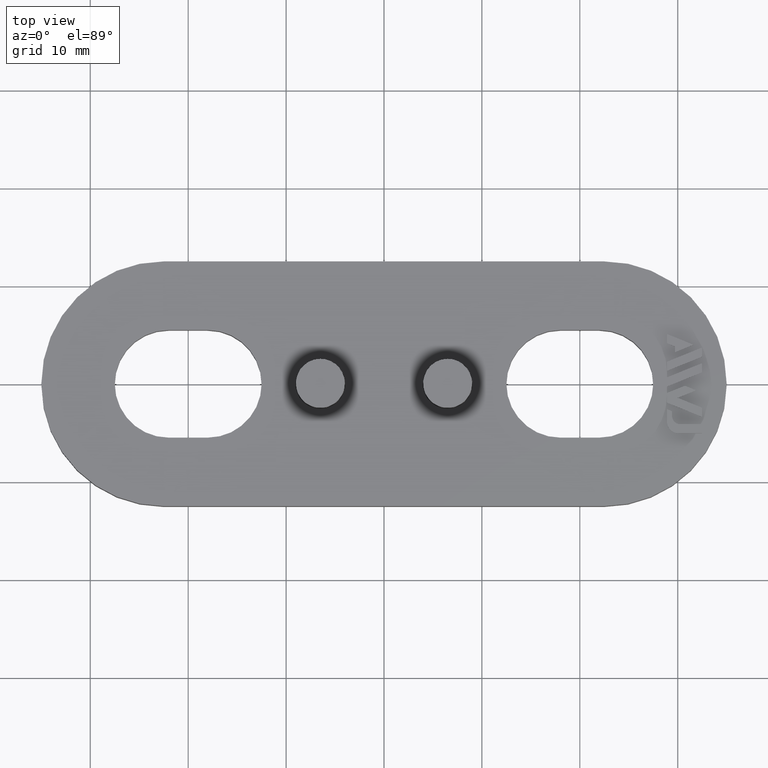
[diagram: clean part render]
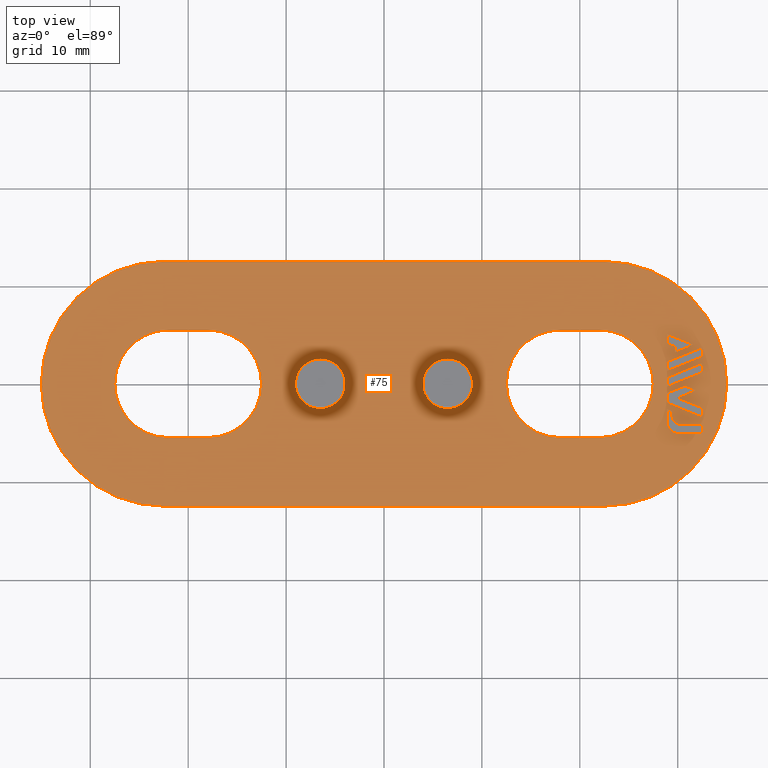
[diagram: same view with one face highlighted and labeled with its STEP entity id]
A machine part, top view. The second image highlights one B-rep face of the part: STEP entity #75.
In plain terms, the highlighted planar face has unit normal (0, -0, -1).
Its self-contained STEP definition (entity closure, byte-faithful):
#75 = ADVANCED_FACE( '', ( #292, #293, #294, #295, #296, #297, #298, #299, #300, #301 ), #302, .F. );
#292 = FACE_BOUND( '', #768, .T. );
#293 = FACE_BOUND( '', #769, .T. );
#294 = FACE_BOUND( '', #770, .T. );
#295 = FACE_OUTER_BOUND( '', #771, .T. );
#296 = FACE_BOUND( '', #772, .T. );
#297 = FACE_BOUND( '', #773, .T. );
#298 = FACE_BOUND( '', #774, .T. );
#299 = FACE_BOUND( '', #775, .T. );
#300 = FACE_BOUND( '', #776, .T. );
#301 = FACE_BOUND( '', #777, .T. );
#302 = PLANE( '', #778 );
#768 = EDGE_LOOP( '', ( #1244, #1245, #1246, #1247, #1248, #1249, #1250 ) );
#769 = EDGE_LOOP( '', ( #1251, #1252, #1253, #1254 ) );
#770 = EDGE_LOOP( '', ( #1255, #1256, #1257, #1258, #1259, #1260 ) );
#771 = EDGE_LOOP( '', ( #1261, #1262, #1263, #1264, #1265, #1266 ) );
#772 = EDGE_LOOP( '', ( #1267, #1268, #1269, #1270, #1271, #1272 ) );
#773 = EDGE_LOOP( '', ( #1273 ) );
#774 = EDGE_LOOP( '', ( #1274 ) );
#775 = EDGE_LOOP( '', ( #1275, #1276, #1277, #1278, #1279 ) );
#776 = EDGE_LOOP( '', ( #1280, #1281, #1282, #1283 ) );
#777 = EDGE_LOOP( '', ( #1284, #1285, #1286, #1287, #1288, #1289, #1290, #1291 ) );
#778 = AXIS2_PLACEMENT_3D( '', #1292, #1293, #1294 );
#1244 = ORIENTED_EDGE( '', *, *, #2960, .F. );
#1245 = ORIENTED_EDGE( '', *, *, #2961, .F. );
#1246 = ORIENTED_EDGE( '', *, *, #2962, .F. );
#1247 = ORIENTED_EDGE( '', *, *, #2963, .F. );
#1248 = ORIENTED_EDGE( '', *, *, #2964, .F. );
#1249 = ORIENTED_EDGE( '', *, *, #2965, .F. );
#1250 = ORIENTED_EDGE( '', *, *, #2966, .F. );
#1251 = ORIENTED_EDGE( '', *, *, #2967, .F. );
#1252 = ORIENTED_EDGE( '', *, *, #2968, .F. );
#1253 = ORIENTED_EDGE( '', *, *, #2969, .F. );
#1254 = ORIENTED_EDGE( '', *, *, #2970, .F. );
#1255 = ORIENTED_EDGE( '', *, *, #2971, .F. );
#1256 = ORIENTED_EDGE( '', *, *, #2972, .F. );
#1257 = ORIENTED_EDGE( '', *, *, #2973, .F. );
#1258 = ORIENTED_EDGE( '', *, *, #2974, .F. );
#1259 = ORIENTED_EDGE( '', *, *, #2975, .F. );
#1260 = ORIENTED_EDGE( '', *, *, #2976, .F. );
#1261 = ORIENTED_EDGE( '', *, *, #2977, .F. );
#1262 = ORIENTED_EDGE( '', *, *, #2978, .F. );
#1263 = ORIENTED_EDGE( '', *, *, #2979, .F. );
#1264 = ORIENTED_EDGE( '', *, *, #2980, .F. );
#1265 = ORIENTED_EDGE( '', *, *, #2981, .F. );
#1266 = ORIENTED_EDGE( '', *, *, #2982, .F. );
#1267 = ORIENTED_EDGE( '', *, *, #2983, .F. );
#1268 = ORIENTED_EDGE( '', *, *, #2984, .F. );
#1269 = ORIENTED_EDGE( '', *, *, #2985, .F. );
#1270 = ORIENTED_EDGE( '', *, *, #2986, .F. );
#1271 = ORIENTED_EDGE( '', *, *, #2987, .F. );
#1272 = ORIENTED_EDGE( '', *, *, #2988, .F. );
#1273 = ORIENTED_EDGE( '', *, *, #2989, .T. );
#1274 = ORIENTED_EDGE( '', *, *, #2990, .T. );
#1275 = ORIENTED_EDGE( '', *, *, #2991, .F. );
#1276 = ORIENTED_EDGE( '', *, *, #2992, .F. );
#1277 = ORIENTED_EDGE( '', *, *, #2993, .F. );
#1278 = ORIENTED_EDGE( '', *, *, #2994, .F. );
#1279 = ORIENTED_EDGE( '', *, *, #2995, .F. );
#1280 = ORIENTED_EDGE( '', *, *, #2996, .F. );
#1281 = ORIENTED_EDGE( '', *, *, #2997, .F. );
#1282 = ORIENTED_EDGE( '', *, *, #2998, .F. );
#1283 = ORIENTED_EDGE( '', *, *, #2999, .F. );
#1284 = ORIENTED_EDGE( '', *, *, #3000, .F. );
#1285 = ORIENTED_EDGE( '', *, *, #3001, .F. );
#1286 = ORIENTED_EDGE( '', *, *, #3002, .F. );
#1287 = ORIENTED_EDGE( '', *, *, #3003, .F. );
#1288 = ORIENTED_EDGE( '', *, *, #3004, .F. );
#1289 = ORIENTED_EDGE( '', *, *, #3005, .F. );
#1290 = ORIENTED_EDGE( '', *, *, #3006, .F. );
#1291 = ORIENTED_EDGE( '', *, *, #3007, .F. );
#1292 = CARTESIAN_POINT( '', ( 22.5000000000000, 0.000000000000000, 5.00000000000000 ) );
#1293 = DIRECTION( '', ( 0.000000000000000, -6.12303176911189E-017, -1.00000000000000 ) );
#1294 = DIRECTION( '', ( 0.000000000000000, -1.00000000000000, 6.12303176911189E-017 ) );
#2960 = EDGE_CURVE( '', #3494, #3495, #3496, .T. );
#2961 = EDGE_CURVE( '', #3497, #3494, #3498, .T. );
#2962 = EDGE_CURVE( '', #3499, #3497, #3500, .T. );
#2963 = EDGE_CURVE( '', #3501, #3499, #3502, .T. );
#2964 = EDGE_CURVE( '', #3503, #3501, #3504, .T. );
#2965 = EDGE_CURVE( '', #3505, #3503, #3506, .T. );
#2966 = EDGE_CURVE( '', #3495, #3505, #3507, .T. );
#2967 = EDGE_CURVE( '', #3508, #3509, #3510, .T. );
#2968 = EDGE_CURVE( '', #3511, #3508, #3512, .T. );
#2969 = EDGE_CURVE( '', #3513, #3511, #3514, .T. );
#2970 = EDGE_CURVE( '', #3509, #3513, #3515, .T. );
#2971 = EDGE_CURVE( '', #3516, #3517, #3518, .T. );
#2972 = EDGE_CURVE( '', #3519, #3516, #3520, .T. );
#2973 = EDGE_CURVE( '', #3521, #3519, #3522, .T. );
#2974 = EDGE_CURVE( '', #3523, #3521, #3524, .T. );
#2975 = EDGE_CURVE( '', #3525, #3523, #3526, .T. );
#2976 = EDGE_CURVE( '', #3517, #3525, #3527, .T. );
#2977 = EDGE_CURVE( '', #3528, #3529, #3530, .T. );
#2978 = EDGE_CURVE( '', #3531, #3528, #3532, .T. );
#2979 = EDGE_CURVE( '', #3533, #3531, #3534, .T. );
#2980 = EDGE_CURVE( '', #3535, #3533, #3536, .T. );
#2981 = EDGE_CURVE( '', #3537, #3535, #3538, .T. );
#2982 = EDGE_CURVE( '', #3529, #3537, #3539, .T. );
#2983 = EDGE_CURVE( '', #3540, #3541, #3542, .T. );
#2984 = EDGE_CURVE( '', #3543, #3540, #3544, .T. );
#2985 = EDGE_CURVE( '', #3545, #3543, #3546, .T. );
#2986 = EDGE_CURVE( '', #3547, #3545, #3548, .T. );
#2987 = EDGE_CURVE( '', #3549, #3547, #3550, .T. );
#2988 = EDGE_CURVE( '', #3541, #3549, #3551, .T. );
#2989 = EDGE_CURVE( '', #3552, #3552, #3553, .T. );
#2990 = EDGE_CURVE( '', #3554, #3554, #3555, .T. );
#2991 = EDGE_CURVE( '', #3556, #3557, #3558, .T. );
#2992 = EDGE_CURVE( '', #3559, #3556, #3560, .T. );
#2993 = EDGE_CURVE( '', #3561, #3559, #3562, .T. );
#2994 = EDGE_CURVE( '', #3563, #3561, #3564, .T. );
#2995 = EDGE_CURVE( '', #3557, #3563, #3565, .T. );
#2996 = EDGE_CURVE( '', #3566, #3567, #3568, .T. );
#2997 = EDGE_CURVE( '', #3569, #3566, #3570, .T. );
#2998 = EDGE_CURVE( '', #3571, #3569, #3572, .T. );
#2999 = EDGE_CURVE( '', #3567, #3571, #3573, .T. );
#3000 = EDGE_CURVE( '', #3574, #3575, #3576, .T. );
#3001 = EDGE_CURVE( '', #3577, #3574, #3578, .T. );
#3002 = EDGE_CURVE( '', #3579, #3577, #3580, .T. );
#3003 = EDGE_CURVE( '', #3581, #3579, #3582, .T. );
#3004 = EDGE_CURVE( '', #3583, #3581, #3584, .T. );
#3005 = EDGE_CURVE( '', #3585, #3583, #3586, .T. );
#3006 = EDGE_CURVE( '', #3587, #3585, #3588, .T. );
#3007 = EDGE_CURVE( '', #3575, #3587, #3589, .T. );
#3494 = VERTEX_POINT( '', #4388 );
#3495 = VERTEX_POINT( '', #4389 );
#3496 = LINE( '', #4390, #4391 );
#3497 = VERTEX_POINT( '', #4392 );
#3498 = LINE( '', #4393, #4394 );
#3499 = VERTEX_POINT( '', #4395 );
#3500 = LINE( '', #4396, #4397 );
#3501 = VERTEX_POINT( '', #4398 );
#3502 = LINE( '', #4399, #4400 );
#3503 = VERTEX_POINT( '', #4401 );
#3504 = LINE( '', #4402, #4403 );
#3505 = VERTEX_POINT( '', #4404 );
#3506 = LINE( '', #4405, #4406 );
#3507 = LINE( '', #4407, #4408 );
#3508 = VERTEX_POINT( '', #4409 );
#3509 = VERTEX_POINT( '', #4410 );
#3510 = LINE( '', #4411, #4412 );
#3511 = VERTEX_POINT( '', #4413 );
#3512 = LINE( '', #4414, #4415 );
#3513 = VERTEX_POINT( '', #4416 );
#3514 = LINE( '', #4417, #4418 );
#3515 = LINE( '', #4419, #4420 );
#3516 = VERTEX_POINT( '', #4421 );
#3517 = VERTEX_POINT( '', #4422 );
#3518 = CIRCLE( '', #4423, 5.50000000000000 );
#3519 = VERTEX_POINT( '', #4424 );
#3520 = CIRCLE( '', #4425, 5.50000000000000 );
#3521 = VERTEX_POINT( '', #4426 );
#3522 = LINE( '', #4427, #4428 );
#3523 = VERTEX_POINT( '', #4429 );
#3524 = CIRCLE( '', #4430, 5.50000000000000 );
#3525 = VERTEX_POINT( '', #4431 );
#3526 = CIRCLE( '', #4432, 5.50000000000000 );
#3527 = LINE( '', #4433, #4434 );
#3528 = VERTEX_POINT( '', #4435 );
#3529 = VERTEX_POINT( '', #4436 );
#3530 = CIRCLE( '', #4437, 12.5000000000000 );
#3531 = VERTEX_POINT( '', #4438 );
#3532 = CIRCLE( '', #4439, 12.5000000000000 );
#3533 = VERTEX_POINT( '', #4440 );
#3534 = LINE( '', #4441, #4442 );
#3535 = VERTEX_POINT( '', #4443 );
#3536 = CIRCLE( '', #4444, 12.5000000000000 );
#3537 = VERTEX_POINT( '', #4445 );
#3538 = CIRCLE( '', #4446, 12.5000000000000 );
#3539 = LINE( '', #4447, #4448 );
#3540 = VERTEX_POINT( '', #4449 );
#3541 = VERTEX_POINT( '', #4450 );
#3542 = CIRCLE( '', #4451, 5.50000000000000 );
#3543 = VERTEX_POINT( '', #4452 );
#3544 = CIRCLE( '', #4453, 5.50000000000000 );
#3545 = VERTEX_POINT( '', #4454 );
#3546 = LINE( '', #4455, #4456 );
#3547 = VERTEX_POINT( '', #4457 );
#3548 = CIRCLE( '', #4458, 5.50000000000000 );
#3549 = VERTEX_POINT( '', #4459 );
#3550 = CIRCLE( '', #4460, 5.50000000000000 );
#3551 = LINE( '', #4461, #4462 );
#3552 = VERTEX_POINT( '', #4463 );
#3553 = CIRCLE( '', #4464, 2.54363766232054 );
#3554 = VERTEX_POINT( '', #4465 );
#3555 = CIRCLE( '', #4466, 2.54363766232055 );
#3556 = VERTEX_POINT( '', #4467 );
#3557 = VERTEX_POINT( '', #4468 );
#3558 = LINE( '', #4469, #4470 );
#3559 = VERTEX_POINT( '', #4471 );
#3560 = LINE( '', #4472, #4473 );
#3561 = VERTEX_POINT( '', #4474 );
#3562 = LINE( '', #4475, #4476 );
#3563 = VERTEX_POINT( '', #4477 );
#3564 = LINE( '', #4478, #4479 );
#3565 = LINE( '', #4480, #4481 );
#3566 = VERTEX_POINT( '', #4482 );
#3567 = VERTEX_POINT( '', #4483 );
#3568 = LINE( '', #4484, #4485 );
#3569 = VERTEX_POINT( '', #4486 );
#3570 = LINE( '', #4487, #4488 );
#3571 = VERTEX_POINT( '', #4489 );
#3572 = LINE( '', #4490, #4491 );
#3573 = LINE( '', #4492, #4493 );
#3574 = VERTEX_POINT( '', #4494 );
#3575 = VERTEX_POINT( '', #4495 );
#3576 = CIRCLE( '', #4496, 1.20000000000000 );
#3577 = VERTEX_POINT( '', #4497 );
#3578 = LINE( '', #4498, #4499 );
#3579 = VERTEX_POINT( '', #4500 );
#3580 = LINE( '', #4501, #4502 );
#3581 = VERTEX_POINT( '', #4503 );
#3582 = LINE( '', #4504, #4505 );
#3583 = VERTEX_POINT( '', #4506 );
#3584 = CIRCLE( '', #4507, 0.800000000000002 );
#3585 = VERTEX_POINT( '', #4508 );
#3586 = LINE( '', #4509, #4510 );
#3587 = VERTEX_POINT( '', #4511 );
#3588 = LINE( '', #4512, #4513 );
#3589 = LINE( '', #4514, #4515 );
#4388 = CARTESIAN_POINT( '', ( 28.9000000000001, -1.94153815900077, 4.99999999999998 ) );
#4389 = CARTESIAN_POINT( '', ( 32.4973661704648, -3.39489558569050, 4.99999999999998 ) );
#4390 = CARTESIAN_POINT( '', ( 28.9000000000001, -1.94153815900077, 4.99999999999998 ) );
#4391 = VECTOR( '', #5736, 1000.00000000000 );
#4392 = CARTESIAN_POINT( '', ( 28.9000000000001, -0.958868987414733, 4.99999999999998 ) );
#4393 = CARTESIAN_POINT( '', ( 28.9000000000001, -0.958868987414731, 4.99999999999998 ) );
#4394 = VECTOR( '', #5737, 1000.00000000000 );
#4395 = CARTESIAN_POINT( '', ( 30.7327570440906, -0.218257757464957, 4.99999999999998 ) );
#4396 = CARTESIAN_POINT( '', ( 30.7327570440906, -0.218257757464957, 4.99999999999998 ) );
#4397 = VECTOR( '', #5738, 1000.00000000000 );
#4398 = CARTESIAN_POINT( '', ( 31.8833737475896, -0.683055647481154, 4.99999999999998 ) );
#4399 = CARTESIAN_POINT( '', ( 31.8833737475896, -0.683055647481156, 4.99999999999998 ) );
#4400 = VECTOR( '', #5739, 1000.00000000000 );
#4401 = CARTESIAN_POINT( '', ( 29.9849571645034, -1.45010139340521, 4.99999999999998 ) );
#4402 = CARTESIAN_POINT( '', ( 29.9849571645034, -1.45010139340521, 4.99999999999998 ) );
#4403 = VECTOR( '', #5740, 1000.00000000000 );
#4404 = CARTESIAN_POINT( '', ( 32.4973661704648, -2.46529980565811, 4.99999999999998 ) );
#4405 = CARTESIAN_POINT( '', ( 32.4973661704648, -2.46529980565810, 4.99999999999998 ) );
#4406 = VECTOR( '', #5741, 1000.00000000000 );
#4407 = CARTESIAN_POINT( '', ( 32.4973661704648, -3.39489558569050, 4.99999999999998 ) );
#4408 = VECTOR( '', #5742, 1000.00000000000 );
#4409 = CARTESIAN_POINT( '', ( 28.9000000000001, 1.30847678860041, 4.99999999999998 ) );
#4410 = CARTESIAN_POINT( '', ( 32.4973661704648, 2.76206261720170, 4.99999999999998 ) );
#4411 = CARTESIAN_POINT( '', ( 28.9000000000001, 1.30847678860041, 4.99999999999998 ) );
#4412 = VECTOR( '', #5743, 1000.00000000000 );
#4413 = CARTESIAN_POINT( '', ( 28.9000000000001, 2.23799443113675, 4.99999999999998 ) );
#4414 = CARTESIAN_POINT( '', ( 28.9000000000001, 2.23799443113675, 4.99999999999998 ) );
#4415 = VECTOR( '', #5744, 1000.00000000000 );
#4416 = CARTESIAN_POINT( '', ( 32.4973661704648, 3.69137590013296, 4.99999999999998 ) );
#4417 = CARTESIAN_POINT( '', ( 32.4973661704648, 3.69137590013296, 4.99999999999998 ) );
#4418 = VECTOR( '', #5745, 1000.00000000000 );
#4419 = CARTESIAN_POINT( '', ( 32.4973661704648, 2.76206261720170, 4.99999999999998 ) );
#4420 = VECTOR( '', #5746, 1000.00000000000 );
#4421 = CARTESIAN_POINT( '', ( -12.5000000000000, 0.000000000000000, 5.00000199988362 ) );
#4422 = CARTESIAN_POINT( '', ( -18.0000000000000, 5.50000000000000, 5.00000199988362 ) );
#4423 = AXIS2_PLACEMENT_3D( '', #5747, #5748, #5749 );
#4424 = CARTESIAN_POINT( '', ( -18.0000000000000, -5.49999999999999, 5.00000199988362 ) );
#4425 = AXIS2_PLACEMENT_3D( '', #5750, #5751, #5752 );
#4426 = CARTESIAN_POINT( '', ( -22.0000000000000, -5.50000000000000, 5.00000199988362 ) );
#4427 = CARTESIAN_POINT( '', ( -22.0000000000000, -5.49999999999999, 5.00000199988362 ) );
#4428 = VECTOR( '', #5753, 1000.00000000000 );
#4429 = CARTESIAN_POINT( '', ( -27.5000000000000, 5.20417042793042E-015, 5.00000199988362 ) );
#4430 = AXIS2_PLACEMENT_3D( '', #5754, #5755, #5756 );
#4431 = CARTESIAN_POINT( '', ( -22.0000000000000, 5.50000000000000, 5.00000199988362 ) );
#4432 = AXIS2_PLACEMENT_3D( '', #5757, #5758, #5759 );
#4433 = CARTESIAN_POINT( '', ( -18.0000000000000, 5.50000000000000, 5.00000199988362 ) );
#4434 = VECTOR( '', #5760, 1000.00000000000 );
#4435 = CARTESIAN_POINT( '', ( 35.0000000000000, 0.000000000000000, 5.00000000000000 ) );
#4436 = CARTESIAN_POINT( '', ( 22.5000000000000, -12.5000000000000, 5.00000000000000 ) );
#4437 = AXIS2_PLACEMENT_3D( '', #5761, #5762, #5763 );
#4438 = CARTESIAN_POINT( '', ( 22.5000000000000, 12.5000000000000, 5.00000000000000 ) );
#4439 = AXIS2_PLACEMENT_3D( '', #5764, #5765, #5766 );
#4440 = CARTESIAN_POINT( '', ( -22.5000000000000, 12.5000000000000, 5.00000000000000 ) );
#4441 = CARTESIAN_POINT( '', ( -22.5000000000000, 12.5000000000000, 5.00000000000000 ) );
#4442 = VECTOR( '', #5767, 1000.00000000000 );
#4443 = CARTESIAN_POINT( '', ( -35.0000000000000, -1.73472347597681E-015, 5.00000000000000 ) );
#4444 = AXIS2_PLACEMENT_3D( '', #5768, #5769, #5770 );
#4445 = CARTESIAN_POINT( '', ( -22.5000000000000, -12.5000000000000, 5.00000000000000 ) );
#4446 = AXIS2_PLACEMENT_3D( '', #5771, #5772, #5773 );
#4447 = CARTESIAN_POINT( '', ( 22.5000000000000, -12.5000000000000, 5.00000000000000 ) );
#4448 = VECTOR( '', #5774, 1000.00000000000 );
#4449 = CARTESIAN_POINT( '', ( 27.5000000000000, 3.46944695195361E-015, 5.00000499988362 ) );
#4450 = CARTESIAN_POINT( '', ( 22.0000000000000, 5.50000000000000, 5.00000499988362 ) );
#4451 = AXIS2_PLACEMENT_3D( '', #5775, #5776, #5777 );
#4452 = CARTESIAN_POINT( '', ( 22.0000000000000, -5.49999999999999, 5.00000499988362 ) );
#4453 = AXIS2_PLACEMENT_3D( '', #5778, #5779, #5780 );
#4454 = CARTESIAN_POINT( '', ( 18.0000000000000, -5.49999999999999, 5.00000499988362 ) );
#4455 = CARTESIAN_POINT( '', ( 18.0000000000000, -5.49999999999999, 5.00000499988362 ) );
#4456 = VECTOR( '', #5781, 1000.00000000000 );
#4457 = CARTESIAN_POINT( '', ( 12.5000000000000, 1.04083408558608E-014, 5.00000499988362 ) );
#4458 = AXIS2_PLACEMENT_3D( '', #5782, #5783, #5784 );
#4459 = CARTESIAN_POINT( '', ( 18.0000000000000, 5.50000000000000, 5.00000499988362 ) );
#4460 = AXIS2_PLACEMENT_3D( '', #5785, #5786, #5787 );
#4461 = CARTESIAN_POINT( '', ( 22.0000000000000, 5.50000000000000, 5.00000499988362 ) );
#4462 = VECTOR( '', #5788, 1000.00000000000 );
#4463 = CARTESIAN_POINT( '', ( -6.50000000000000, 2.54380278691939, 5.00000000000000 ) );
#4464 = AXIS2_PLACEMENT_3D( '', #5789, #5790, #5791 );
#4465 = CARTESIAN_POINT( '', ( 6.50000000000000, 2.54347253772170, 5.00000000000000 ) );
#4466 = AXIS2_PLACEMENT_3D( '', #5792, #5793, #5794 );
#4467 = CARTESIAN_POINT( '', ( 28.9000000000001, 4.13597825270632, 4.99999999999998 ) );
#4468 = CARTESIAN_POINT( '', ( 29.7308540273209, 3.80004712542060, 4.99999999999998 ) );
#4469 = CARTESIAN_POINT( '', ( 28.9000000000001, 4.13597825270632, 4.99999999999998 ) );
#4470 = VECTOR( '', #5795, 1000.00000000000 );
#4471 = CARTESIAN_POINT( '', ( 28.9000000000001, 5.06529153563759, 4.99999999999998 ) );
#4472 = CARTESIAN_POINT( '', ( 28.9000000000001, 5.06529153563759, 4.99999999999998 ) );
#4473 = VECTOR( '', #5796, 1000.00000000000 );
#4474 = CARTESIAN_POINT( '', ( 31.5972101947166, 3.97568819540706, 4.99999999999998 ) );
#4475 = CARTESIAN_POINT( '', ( 31.5972101947166, 3.97568819540706, 4.99999999999998 ) );
#4476 = VECTOR( '', #5797, 1000.00000000000 );
#4477 = CARTESIAN_POINT( '', ( 29.7308540273209, 3.22197991900254, 4.99999999999998 ) );
#4478 = CARTESIAN_POINT( '', ( 29.7308540273209, 3.22197991900254, 4.99999999999998 ) );
#4479 = VECTOR( '', #5798, 1000.00000000000 );
#4480 = CARTESIAN_POINT( '', ( 29.7308540273209, 3.80004712542060, 4.99999999999998 ) );
#4481 = VECTOR( '', #5799, 1000.00000000000 );
#4482 = CARTESIAN_POINT( '', ( 28.9000000000001, -0.289999999999976, 4.99999999999998 ) );
#4483 = CARTESIAN_POINT( '', ( 32.4973661704648, 1.16358582860131, 4.99999999999998 ) );
#4484 = CARTESIAN_POINT( '', ( 28.9000000000001, -0.289999999999976, 4.99999999999998 ) );
#4485 = VECTOR( '', #5800, 1000.00000000000 );
#4486 = CARTESIAN_POINT( '', ( 28.9000000000001, 0.639583758879181, 4.99999999999998 ) );
#4487 = CARTESIAN_POINT( '', ( 28.9000000000001, 0.639583758879181, 4.99999999999998 ) );
#4488 = VECTOR( '', #5801, 1000.00000000000 );
#4489 = CARTESIAN_POINT( '', ( 32.4973661704648, 2.09316958748047, 4.99999999999998 ) );
#4490 = CARTESIAN_POINT( '', ( 32.4973661704648, 2.09316958748047, 4.99999999999998 ) );
#4491 = VECTOR( '', #5802, 1000.00000000000 );
#4492 = CARTESIAN_POINT( '', ( 32.4973661704648, 1.16358582860131, 4.99999999999998 ) );
#4493 = VECTOR( '', #5803, 1000.00000000000 );
#4494 = CARTESIAN_POINT( '', ( 28.9000000000001, -3.87288028181882, 4.99999999999998 ) );
#4495 = CARTESIAN_POINT( '', ( 30.1000000000001, -5.07288028181882, 4.99999999999998 ) );
#4496 = AXIS2_PLACEMENT_3D( '', #5804, #5805, #5806 );
#4497 = CARTESIAN_POINT( '', ( 28.9000000000001, -2.61040714641552, 4.99999999999998 ) );
#4498 = CARTESIAN_POINT( '', ( 28.9000000000001, -2.61040714641552, 4.99999999999998 ) );
#4499 = VECTOR( '', #5807, 1000.00000000000 );
#4500 = CARTESIAN_POINT( '', ( 29.4231249674404, -2.82176335265059, 4.99999999999998 ) );
#4501 = CARTESIAN_POINT( '', ( 29.4231249674404, -2.82176335265059, 4.99999999999998 ) );
#4502 = VECTOR( '', #5808, 1000.00000000000 );
#4503 = CARTESIAN_POINT( '', ( 29.4231249674404, -3.33274195062395, 4.99999999999998 ) );
#4504 = CARTESIAN_POINT( '', ( 29.4231249674404, -3.33274195062395, 4.99999999999998 ) );
#4505 = VECTOR( '', #5809, 1000.00000000000 );
#4506 = CARTESIAN_POINT( '', ( 30.2231249674404, -4.13274195062395, 4.99999999999998 ) );
#4507 = AXIS2_PLACEMENT_3D( '', #5810, #5811, #5812 );
#4508 = CARTESIAN_POINT( '', ( 32.4973661704648, -4.13274195062395, 5.00000000000000 ) );
#4509 = CARTESIAN_POINT( '', ( 32.4973661704648, -4.13274195062395, 4.99999999999998 ) );
#4510 = VECTOR( '', #5813, 1000.00000000000 );
#4511 = CARTESIAN_POINT( '', ( 32.4973661704648, -5.07288028181882, 4.99999999999998 ) );
#4512 = CARTESIAN_POINT( '', ( 32.4973661704648, -5.07288028181882, 5.00000000000000 ) );
#4513 = VECTOR( '', #5814, 1000.00000000000 );
#4514 = CARTESIAN_POINT( '', ( 30.1000000000001, -5.07288028181882, 4.99999999999998 ) );
#4515 = VECTOR( '', #5815, 1000.00000000000 );
#5736 = DIRECTION( '', ( 0.927190376050329, -0.374590451773198, 2.39125360955527E-016 ) );
#5737 = DIRECTION( '', ( 6.12303176911188E-017, -1.00000000000000, 1.83690953073356E-016 ) );
#5738 = DIRECTION( '', ( -0.927161130553612, -0.374662832411421, -1.01488938957147E-016 ) );
#5739 = DIRECTION( '', ( -0.927206645422846, 0.374550179126525, -2.39120951771220E-016 ) );
#5740 = DIRECTION( '', ( 0.927177805503196, 0.374621565025663, 1.01499582439949E-016 ) );
#5741 = DIRECTION( '', ( -0.927168564368796, 0.374644435760503, -2.39131270717037E-016 ) );
#5742 = DIRECTION( '', ( -6.12303176911189E-017, 1.00000000000000, -1.83690953073356E-016 ) );
#5743 = DIRECTION( '', ( 0.927169929060563, 0.374641058409020, 1.01494554850527E-016 ) );
#5744 = DIRECTION( '', ( 6.12303176911188E-017, -1.00000000000000, 1.83690953073356E-016 ) );
#5745 = DIRECTION( '', ( -0.927188223823226, -0.374595778945159, -1.01506232860788E-016 ) );
#5746 = DIRECTION( '', ( -6.12303176911189E-017, 1.00000000000000, -1.83690953073356E-016 ) );
#5747 = CARTESIAN_POINT( '', ( -18.0000000000000, 0.000000000000000, 5.00000199988362 ) );
#5748 = DIRECTION( '', ( 0.000000000000000, 6.12303176911189E-017, 1.00000000000000 ) );
#5749 = DIRECTION( '', ( 1.15648231731787E-016, -1.00000000000000, 6.12303176911189E-017 ) );
#5750 = CARTESIAN_POINT( '', ( -18.0000000000000, 3.46944695195361E-015, 5.00000199988362 ) );
#5751 = DIRECTION( '', ( 0.000000000000000, 6.12303176911189E-017, 1.00000000000000 ) );
#5752 = DIRECTION( '', ( 1.15648231731787E-016, -1.00000000000000, 6.12303176911189E-017 ) );
#5753 = DIRECTION( '', ( 1.00000000000000, 1.15648231731787E-016, -7.08117796935346E-033 ) );
#5754 = CARTESIAN_POINT( '', ( -22.0000000000000, 3.46944695195361E-015, 5.00000199988362 ) );
#5755 = DIRECTION( '', ( 0.000000000000000, 6.12303176911189E-017, 1.00000000000000 ) );
#5756 = DIRECTION( '', ( 1.15648231731787E-016, -1.00000000000000, 6.12303176911189E-017 ) );
#5757 = CARTESIAN_POINT( '', ( -22.0000000000000, 0.000000000000000, 5.00000199988362 ) );
#5758 = DIRECTION( '', ( 0.000000000000000, 6.12303176911189E-017, 1.00000000000000 ) );
#5759 = DIRECTION( '', ( 1.15648231731787E-016, -1.00000000000000, 6.12303176911189E-017 ) );
#5760 = DIRECTION( '', ( -1.00000000000000, -1.15648231731787E-016, 7.08117796935346E-033 ) );
#5761 = CARTESIAN_POINT( '', ( 22.5000000000000, 0.000000000000000, 5.00000000000000 ) );
#5762 = DIRECTION( '', ( 0.000000000000000, -6.12303176911189E-017, -1.00000000000000 ) );
#5763 = DIRECTION( '', ( 0.000000000000000, 1.00000000000000, -6.12303176911189E-017 ) );
#5764 = CARTESIAN_POINT( '', ( 22.5000000000000, 0.000000000000000, 5.00000000000000 ) );
#5765 = DIRECTION( '', ( 0.000000000000000, -6.12303176911189E-017, -1.00000000000000 ) );
#5766 = DIRECTION( '', ( 0.000000000000000, 1.00000000000000, -6.12303176911189E-017 ) );
#5767 = DIRECTION( '', ( 1.00000000000000, 0.000000000000000, 0.000000000000000 ) );
#5768 = CARTESIAN_POINT( '', ( -22.5000000000000, 0.000000000000000, 5.00000000000000 ) );
#5769 = DIRECTION( '', ( 0.000000000000000, -6.12303176911189E-017, -1.00000000000000 ) );
#5770 = DIRECTION( '', ( 0.000000000000000, 1.00000000000000, -6.12303176911189E-017 ) );
#5771 = CARTESIAN_POINT( '', ( -22.5000000000000, 0.000000000000000, 5.00000000000000 ) );
#5772 = DIRECTION( '', ( 0.000000000000000, -6.12303176911189E-017, -1.00000000000000 ) );
#5773 = DIRECTION( '', ( 0.000000000000000, 1.00000000000000, -6.12303176911189E-017 ) );
#5774 = DIRECTION( '', ( -1.00000000000000, 0.000000000000000, 0.000000000000000 ) );
#5775 = CARTESIAN_POINT( '', ( 22.0000000000000, 1.73472347597681E-015, 5.00000499988362 ) );
#5776 = DIRECTION( '', ( 0.000000000000000, 6.12303176911189E-017, 1.00000000000000 ) );
#5777 = DIRECTION( '', ( 5.78241158658935E-017, -1.00000000000000, 6.12303176911189E-017 ) );
#5778 = CARTESIAN_POINT( '', ( 22.0000000000000, 3.46944695195361E-015, 5.00000499988362 ) );
#5779 = DIRECTION( '', ( 7.23811190250423E-049, 6.12303176911189E-017, 1.00000000000000 ) );
#5780 = DIRECTION( '', ( 5.78241158658936E-017, -1.00000000000000, 6.12303176911189E-017 ) );
#5781 = DIRECTION( '', ( 1.00000000000000, 5.78241158658936E-017, -3.54058898467673E-033 ) );
#5782 = CARTESIAN_POINT( '', ( 18.0000000000000, 3.46944695195361E-015, 5.00000499988362 ) );
#5783 = DIRECTION( '', ( 0.000000000000000, 6.12303176911189E-017, 1.00000000000000 ) );
#5784 = DIRECTION( '', ( 5.78241158658935E-017, -1.00000000000000, 6.12303176911189E-017 ) );
#5785 = CARTESIAN_POINT( '', ( 18.0000000000000, 1.73472347597681E-015, 5.00000499988362 ) );
#5786 = DIRECTION( '', ( 0.000000000000000, 6.12303176911189E-017, 1.00000000000000 ) );
#5787 = DIRECTION( '', ( 5.78241158658935E-017, -1.00000000000000, 6.12303176911189E-017 ) );
#5788 = DIRECTION( '', ( -1.00000000000000, -5.78241158658936E-017, 3.54058898467673E-033 ) );
#5789 = CARTESIAN_POINT( '', ( -6.50000000000000, 0.000165124598850222, 5.00000000000000 ) );
#5790 = DIRECTION( '', ( 0.000000000000000, -6.12303176911189E-017, -1.00000000000000 ) );
#5791 = DIRECTION( '', ( 0.000000000000000, 1.00000000000000, -6.12303176911189E-017 ) );
#5792 = CARTESIAN_POINT( '', ( 6.50000000000000, -0.000165124598848487, 5.00000000000000 ) );
#5793 = DIRECTION( '', ( 0.000000000000000, -6.12303176911189E-017, -1.00000000000000 ) );
#5794 = DIRECTION( '', ( 0.000000000000000, 1.00000000000000, -6.12303176911189E-017 ) );
#5795 = DIRECTION( '', ( 0.927089140205383, -0.374840934415179, 2.39152776241917E-016 ) );
#5796 = DIRECTION( '', ( 1.16741468922377E-016, -1.00000000000000, 1.83690953073356E-016 ) );
#5797 = DIRECTION( '', ( -0.927200607094025, 0.374565126786346, -2.39122588334723E-016 ) );
#5798 = DIRECTION( '', ( 0.927243990558706, 0.374457717202846, 1.01541837398607E-016 ) );
#5799 = DIRECTION( '', ( 6.12303176911189E-017, -1.00000000000000, 1.83690953073356E-016 ) );
#5800 = DIRECTION( '', ( 0.927169929060563, 0.374641058409019, 1.01494554850527E-016 ) );
#5801 = DIRECTION( '', ( -1.60814287233912E-016, -1.00000000000000, 1.83690953073356E-016 ) );
#5802 = DIRECTION( '', ( -0.927169929060563, -0.374641058409020, -1.01494554850527E-016 ) );
#5803 = DIRECTION( '', ( 1.60814287233912E-016, 1.00000000000000, -1.83690953073356E-016 ) );
#5804 = CARTESIAN_POINT( '', ( 30.1000000000001, -3.87288028181882, 4.99999999999998 ) );
#5805 = DIRECTION( '', ( 1.42547451204917E-048, 6.12303176911188E-017, 1.00000000000000 ) );
#5806 = DIRECTION( '', ( -1.00000000000000, -6.12303176911189E-017, 3.74915180455534E-033 ) );
#5807 = DIRECTION( '', ( 6.12303176911188E-017, -1.00000000000000, 1.83690953073356E-016 ) );
#5808 = DIRECTION( '', ( -0.927183854566787, 0.374606593415912, -2.39127128091734E-016 ) );
#5809 = DIRECTION( '', ( -6.12303176911189E-017, 1.00000000000000, -1.83690953073357E-016 ) );
#5810 = CARTESIAN_POINT( '', ( 30.2231249674404, -3.33274195062395, 4.99999999999998 ) );
#5811 = DIRECTION( '', ( 5.34552942018436E-049, -6.12303176911189E-017, -1.00000000000000 ) );
#5812 = DIRECTION( '', ( 6.12303176911189E-017, -1.00000000000000, 6.12303176911189E-017 ) );
#5813 = DIRECTION( '', ( -1.00000000000000, -5.14996031930577E-019, -1.83690953073357E-016 ) );
#5814 = DIRECTION( '', ( -6.12303176911189E-017, 1.00000000000000, -1.83690953073356E-016 ) );
#5815 = DIRECTION( '', ( 1.00000000000000, 5.14996031930589E-019, 1.83690953073357E-016 ) );